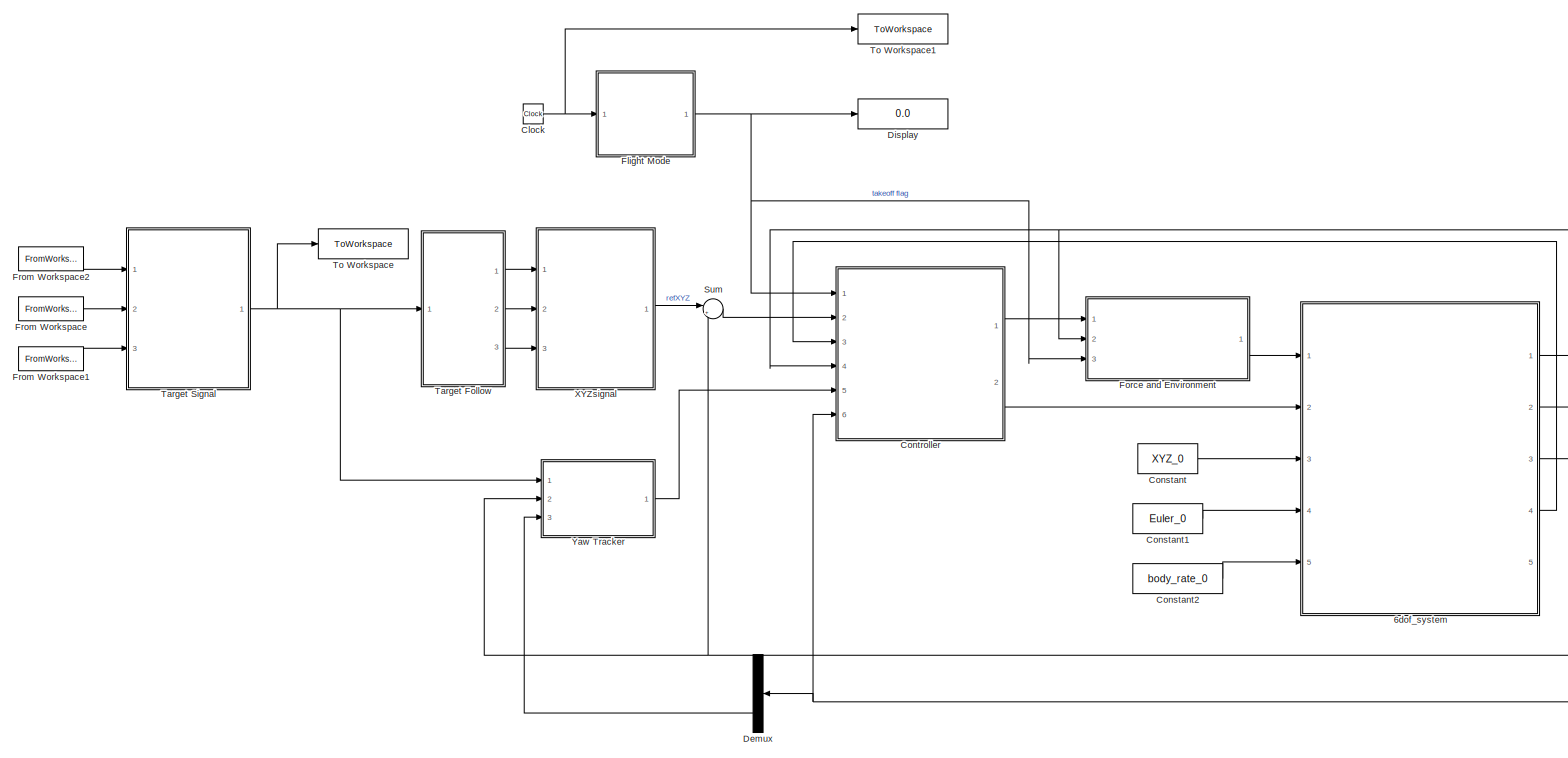
[diagram: root canvas - part 1/1, most of the canvas]
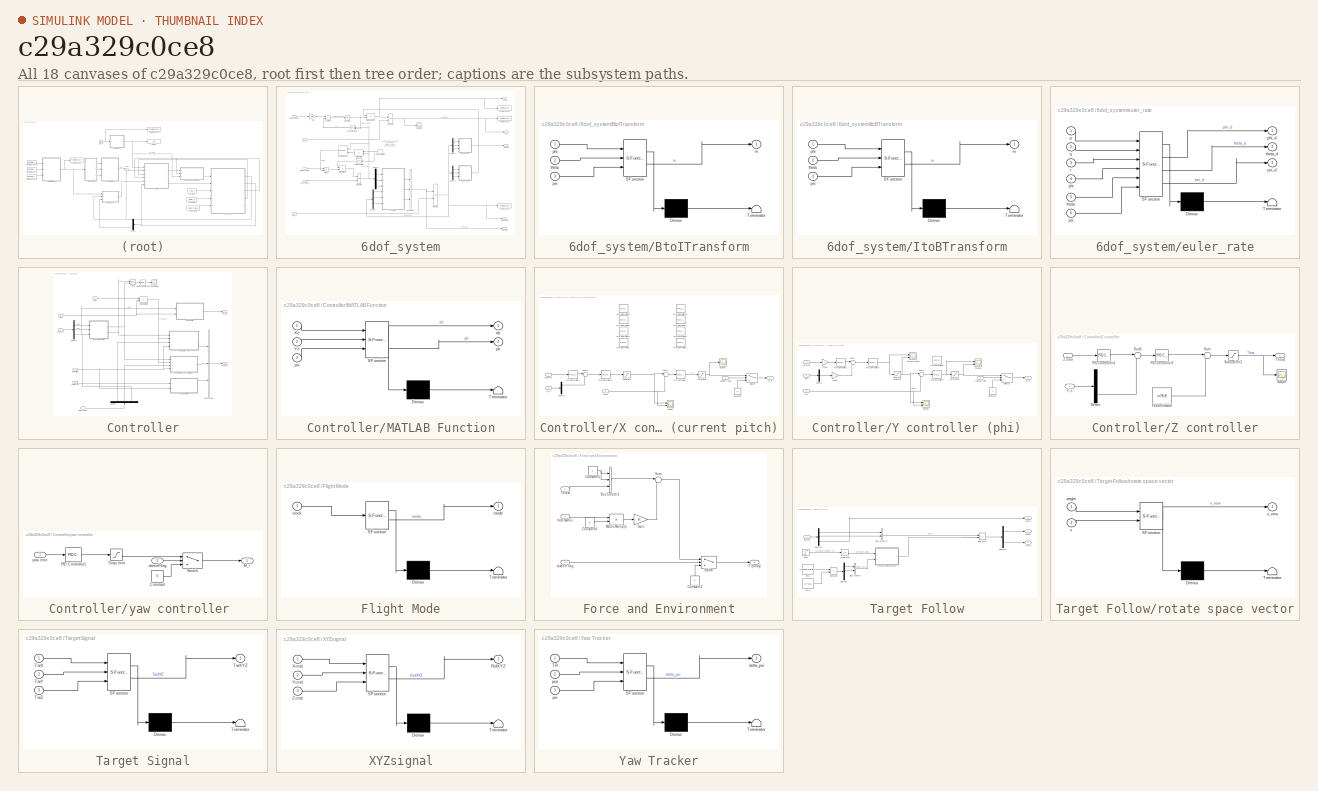
[diagram: thumbnail index - all 18 canvases of the model, root first then tree order]
MODEL slx_c29a329c0ce8
KIND model
CONFIG AbsTol = auto
CONFIG EnableMultiTasking = off
CONFIG FixedStep = auto
CONFIG MaxStep = auto
CONFIG MinStep = auto
CONFIG RelTol = 1e-3
CONFIG SampleTimeConstraint = Unconstrained
CONFIG Solver = VariableStepAuto
CONFIG SolverName = VariableStepAuto
CONFIG StartTime = 0.0
CONFIG StopTime = Tfinal
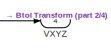
[diagram: 6dof_system - part 1/4, top right region]
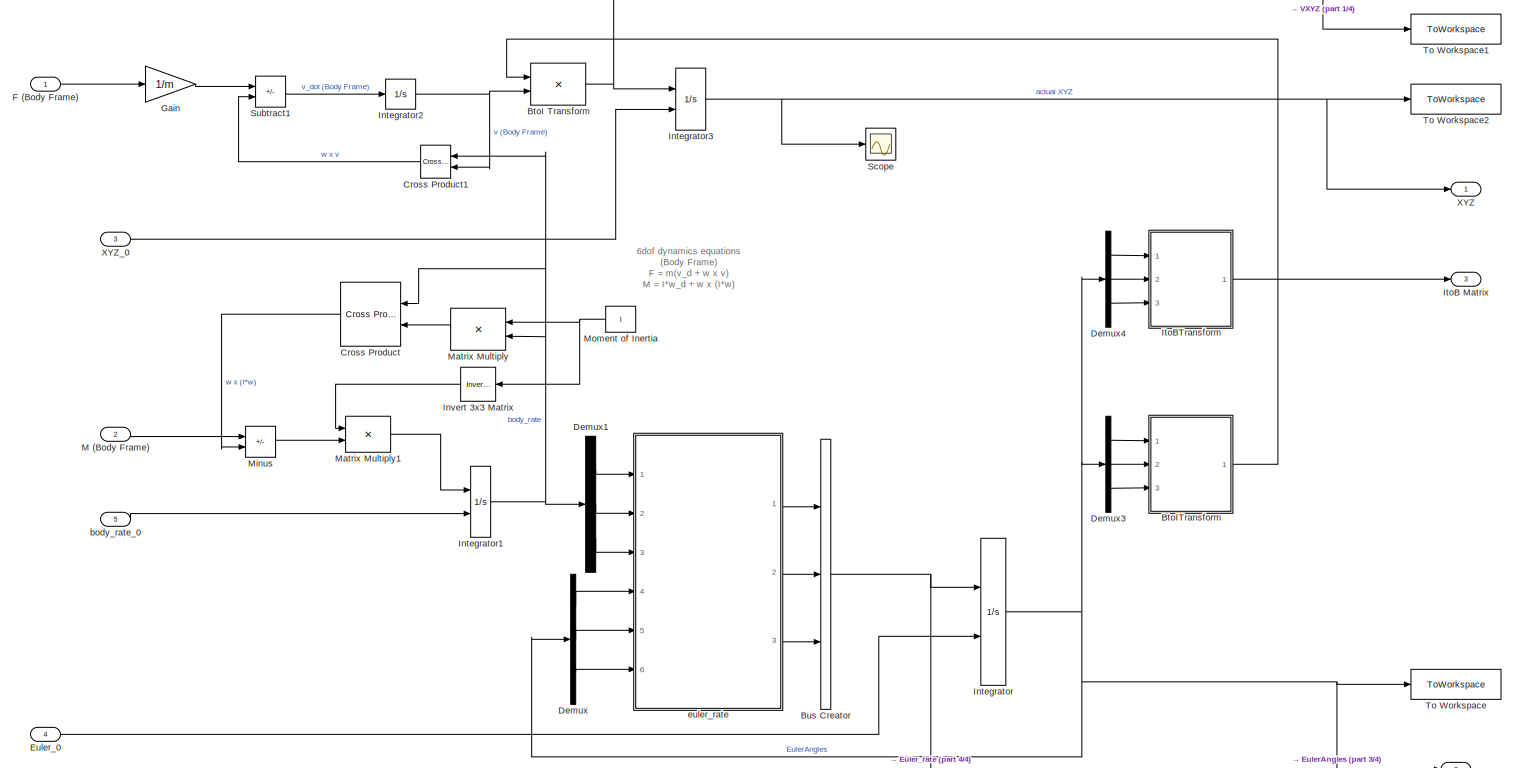
[diagram: 6dof_system - part 2/4, most of the canvas]
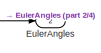
[diagram: 6dof_system - part 3/4, bottom right region]
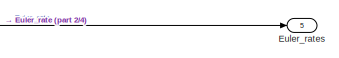
[diagram: 6dof_system - part 4/4, bottom right region]
BLOCK [SubSystem] 6dof_system
  Ports = [5, 5]
  RequestExecContextInheritance = off
BLOCK [Product] 6dof_system/BtoI Transform
  Multiplication = Matrix(*)
  Ports = [2, 1]
BLOCK [SubSystem] 6dof_system/BtoITransform
  ErrorFcn = Stateflow.Translate.translate
  PermitHierarchicalResolution = ExplicitOnly
  Ports = [3, 1]
  RequestExecContextInheritance = off
  SFBlockType = MATLAB Function
  TreatAsAtomicUnit = on
BLOCK [Demux] 6dof_system/BtoITransform/ Demux 
  Outputs = 1
  Ports = [1, 1]
BLOCK [S-Function] 6dof_system/BtoITransform/ SFunction 
  EnableBusSupport = on
  FunctionName = sf_sfun
  PortCounts = [3 2]
  Ports = [3, 2]
  SFcnIsStateOwnerBlock = off
  SFunctionDeploymentMode = off
  Tag = Stateflow S-Function 1
BLOCK [Terminator] 6dof_system/BtoITransform/ Terminator 
BLOCK [Outport] 6dof_system/BtoITransform/m
BLOCK [Inport] 6dof_system/BtoITransform/phi
BLOCK [Inport] 6dof_system/BtoITransform/psi
  Port = 3
BLOCK [Inport] 6dof_system/BtoITransform/theta
  Port = 2
BLOCK [BusCreator] 6dof_system/Bus Creator
  DisplayOption = bar
  InheritFromInputs = on
  Inputs = 3
  Ports = [3, 1]
BLOCK [Reference] 6dof_system/Cross Product  REF=vrlib/Utilities/Cross Product
  NameLocation = top
  Ports = [2, 1]
  SourceBlock = vrlib/Utilities/Cross Product
  SourceProductBaseCode = SL
  SourceType = Cross Product
BLOCK [Reference] 6dof_system/Cross Product1  REF=vrlib/Utilities/Cross Product
  NameLocation = top
  Ports = [2, 1]
  SourceBlock = vrlib/Utilities/Cross Product
  SourceProductBaseCode = SL
  SourceType = Cross Product
BLOCK [Demux] 6dof_system/Demux
  Outputs = 3
  Ports = [1, 3]
BLOCK [Demux] 6dof_system/Demux1
  Outputs = 3
  Ports = [1, 3]
BLOCK [Demux] 6dof_system/Demux3
  Outputs = 3
  Ports = [1, 3]
BLOCK [Demux] 6dof_system/Demux4
  Outputs = 3
  Ports = [1, 3]
BLOCK [Outport] 6dof_system/EulerAngles
  Port = 2
BLOCK [Inport] 6dof_system/Euler_0
  Port = 4
BLOCK [Outport] 6dof_system/Euler_rates
  Port = 5
BLOCK [Inport] 6dof_system/F (Body Frame)
BLOCK [Gain] 6dof_system/Gain
  Gain = 1/m
BLOCK [Integrator] 6dof_system/Integrator
  ContinuousStateAttributes = 'EulerAngle'
  InitialConditionSource = external
  Ports = [2, 1]
BLOCK [Integrator] 6dof_system/Integrator1
  ContinuousStateAttributes = 'EulerAngle'
  InitialConditionSource = external
  Ports = [2, 1]
BLOCK [Integrator] 6dof_system/Integrator2
  Ports = [1, 1]
BLOCK [Integrator] 6dof_system/Integrator3
  InitialConditionSource = external
  Ports = [2, 1]
BLOCK [Reference] 6dof_system/Invert 3x3 Matrix  REF=aerolibutil/Invert 
3x3 Matrix
  NameLocation = top
  Ports = [1, 1]
  SourceBlock = aerolibutil/Invert \n3x3 Matrix
  SourceProductBaseCode = AE
  SourceType = Invert 3x3 Matrix
BLOCK [Outport] 6dof_system/ItoB Matrix
  Port = 3
BLOCK [SubSystem] 6dof_system/ItoBTransform
  ErrorFcn = Stateflow.Translate.translate
  PermitHierarchicalResolution = ExplicitOnly
  Ports = [3, 1]
  RequestExecContextInheritance = off
  SFBlockType = MATLAB Function
  TreatAsAtomicUnit = on
BLOCK [Demux] 6dof_system/ItoBTransform/ Demux 
  Outputs = 1
  Ports = [1, 1]
BLOCK [S-Function] 6dof_system/ItoBTransform/ SFunction 
  EnableBusSupport = on
  FunctionName = sf_sfun
  PortCounts = [3 2]
  Ports = [3, 2]
  SFcnIsStateOwnerBlock = off
  SFunctionDeploymentMode = off
  Tag = Stateflow S-Function 5
BLOCK [Terminator] 6dof_system/ItoBTransform/ Terminator 
BLOCK [Outport] 6dof_system/ItoBTransform/m
BLOCK [Inport] 6dof_system/ItoBTransform/phi
BLOCK [Inport] 6dof_system/ItoBTransform/psi
  Port = 3
BLOCK [Inport] 6dof_system/ItoBTransform/theta
  Port = 2
BLOCK [Inport] 6dof_system/M (Body Frame)
  Port = 2
BLOCK [Product] 6dof_system/Matrix Multiply
  Multiplication = Matrix(*)
  NameLocation = top
  Ports = [2, 1]
BLOCK [Product] 6dof_system/Matrix Multiply1
  Multiplication = Matrix(*)
  Ports = [2, 1]
BLOCK [Sum] 6dof_system/Minus
  IconShape = rectangular
  Inputs = +-
  Ports = [2, 1]
BLOCK [Constant] 6dof_system/Moment of Inertia
  NameLocation = top
  Value = I
BLOCK [Scope] 6dof_system/Scope
  Floating = off
  NumInputPorts = 1
  Ports = [1]
  ScopeSpecificationString = Simulink.scopes.TimeScopeBlockCfg('CurrentConfiguration', extmgr.ConfigurationSet(extmgr.Configuration('Core','General UI',true),extmgr.Configuration('Core','Source UI',true),extmgr.Configuration('Sources','WiredSimulink',true),extmgr.Configuration('Visuals','Time Domain',true,'SerializedDisplays',{struct('MinYLimReal','-2.9474','MaxYLimReal','5.97441','YLabelReal','','MinYLimMag','0.00000','MaxYL...<+1498ch>
BLOCK [Sum] 6dof_system/Subtract1
  IconShape = rectangular
  Inputs = +-
  Ports = [2, 1]
BLOCK [ToWorkspace] 6dof_system/To Workspace
  FixptAsFi = on
  MaxDataPoints = inf
  Ports = [1]
  SampleTime = ts
  VariableName = EulerAngles
BLOCK [ToWorkspace] 6dof_system/To Workspace1
  FixptAsFi = on
  MaxDataPoints = inf
  Ports = [1]
  SampleTime = ts
  VariableName = VXYZ
BLOCK [ToWorkspace] 6dof_system/To Workspace2
  FixptAsFi = on
  MaxDataPoints = inf
  Ports = [1]
  SampleTime = ts
  VariableName = XYZ
BLOCK [Outport] 6dof_system/VXYZ
  Port = 4
BLOCK [Outport] 6dof_system/XYZ
BLOCK [Inport] 6dof_system/XYZ_0
  Port = 3
BLOCK [Inport] 6dof_system/body_rate_0
  Port = 5
BLOCK [SubSystem] 6dof_system/euler_rate
  ErrorFcn = Stateflow.Translate.translate
  PermitHierarchicalResolution = ExplicitOnly
  Ports = [6, 3]
  RequestExecContextInheritance = off
  SFBlockType = MATLAB Function
  TreatAsAtomicUnit = on
BLOCK [Demux] 6dof_system/euler_rate/ Demux 
  Outputs = 1
  Ports = [1, 1]
BLOCK [S-Function] 6dof_system/euler_rate/ SFunction 
  EnableBusSupport = on
  FunctionName = sf_sfun
  PortCounts = [6 4]
  Ports = [6, 4]
  SFcnIsStateOwnerBlock = off
  SFunctionDeploymentMode = off
  Tag = Stateflow S-Function 2
BLOCK [Terminator] 6dof_system/euler_rate/ Terminator 
BLOCK [Inport] 6dof_system/euler_rate/p
BLOCK [Inport] 6dof_system/euler_rate/phi
  Port = 4
BLOCK [Outport] 6dof_system/euler_rate/phi_d
BLOCK [Inport] 6dof_system/euler_rate/psi
  Port = 6
BLOCK [Outport] 6dof_system/euler_rate/psi_d
  Port = 3
BLOCK [Inport] 6dof_system/euler_rate/q
  Port = 2
BLOCK [Inport] 6dof_system/euler_rate/r
  Port = 3
BLOCK [Inport] 6dof_system/euler_rate/theta
  Port = 5
BLOCK [Outport] 6dof_system/euler_rate/theta_d
  Port = 2
BLOCK [Clock] Clock
BLOCK [Constant] Constant
  SampleTime = 0.01
  Value = XYZ_0
BLOCK [Constant] Constant1
  SampleTime = 0.01
  Value = Euler_0
BLOCK [Constant] Constant2
  SampleTime = 0.01
  Value = body_rate_0
BLOCK [SubSystem] Controller
  Ports = [6, 2]
  RequestExecContextInheritance = off
BLOCK [Trigonometry] Controller/Atan2
  Operator = atan2
  Ports = [2, 1]
BLOCK [BusCreator] Controller/Bus Creator
  DisplayOption = bar
  InheritFromInputs = on
  Inputs = 3
  Ports = [3, 1]
BLOCK [Demux] Controller/Demux1
  NameLocation = right
  Outputs = 3
  Ports = [1, 3]
BLOCK [Demux] Controller/Demux2
  Outputs = 3
  Ports = [1, 3]
BLOCK [Inport] Controller/EulerAngles
  Port = 6
BLOCK [Inport] Controller/ItoB
  Port = 4
BLOCK [Outport] Controller/M (body)
  Port = 2
BLOCK [SubSystem] Controller/MATLAB Function
  ErrorFcn = Stateflow.Translate.translate
  PermitHierarchicalResolution = ExplicitOnly
  Ports = [3, 2]
  RequestExecContextInheritance = off
  SFBlockType = MATLAB Function
  TreatAsAtomicUnit = on
BLOCK [Demux] Controller/MATLAB Function/ Demux 
  Outputs = 1
  Ports = [1, 1]
BLOCK [S-Function] Controller/MATLAB Function/ SFunction 
  EnableBusSupport = on
  FunctionName = sf_sfun
  PortCounts = [3 3]
  Ports = [3, 3]
  SFcnIsStateOwnerBlock = off
  SFunctionDeploymentMode = off
  Tag = Stateflow S-Function 3
BLOCK [Terminator] Controller/MATLAB Function/ Terminator 
BLOCK [Inport] Controller/MATLAB Function/Xe
BLOCK [Inport] Controller/MATLAB Function/Ye
  Port = 2
BLOCK [Inport] Controller/MATLAB Function/psi
  Port = 3
BLOCK [Outport] Controller/MATLAB Function/xb
BLOCK [Outport] Controller/MATLAB Function/yb
  Port = 2
BLOCK [Product] Controller/Matrix Multiply
  Multiplication = Matrix(*)
  Ports = [2, 1]
BLOCK [Reference] Controller/Radians to Degrees  REF=simulink_extras/Transformations/Radians
to Degrees
  Ports = [1, 1]
  SourceBlock = simulink_extras/Transformations/Radians\nto Degrees
  SourceProductBaseCode = SL
  SourceType = RadiansToDegrees
BLOCK [Outport] Controller/Thrust
BLOCK [Inport] Controller/VXYZ
  Port = 3
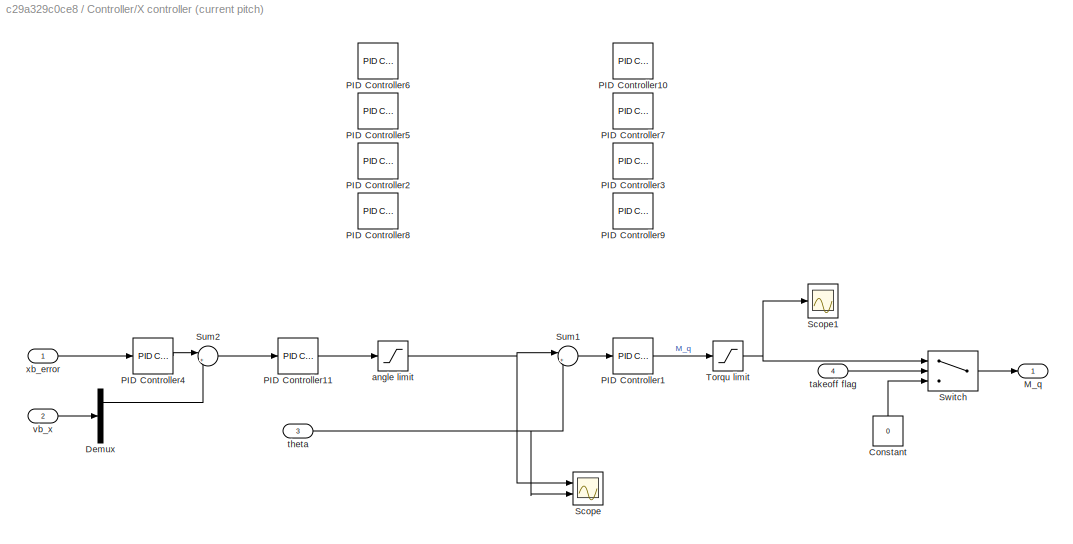
BLOCK [SubSystem] Controller/X controller (current pitch)
  Ports = [4, 1]
  RequestExecContextInheritance = off
BLOCK [Constant] Controller/X controller (current pitch)/Constant
  NameLocation = right
  Value = 0
BLOCK [Demux] Controller/X controller (current pitch)/Demux
  Outputs = 3
  Ports = [1, 3]
BLOCK [Outport] Controller/X controller (current pitch)/M_q
BLOCK [Reference] Controller/X controller (current pitch)/PID Controller1  REF=simulink/Continuous/PID Controller
  Ports = [1, 1]
  SourceBlock = simulink/Continuous/PID Controller
  SourceProductBaseCode = SL
  SourceType = PID 1dof
BLOCK [Reference] Controller/X controller (current pitch)/PID Controller10  REF=simulink/Continuous/PID Controller
  Commented = on
  Ports = [1, 1]
  SourceBlock = simulink/Continuous/PID Controller
  SourceProductBaseCode = SL
  SourceType = PID 1dof
BLOCK [Reference] Controller/X controller (current pitch)/PID Controller11  REF=simulink/Continuous/PID Controller
  Ports = [1, 1]
  SourceBlock = simulink/Continuous/PID Controller
  SourceProductBaseCode = SL
  SourceType = PID 1dof
BLOCK [Reference] Controller/X controller (current pitch)/PID Controller2  REF=simulink/Continuous/PID Controller
  Commented = on
  Ports = [1, 1]
  SourceBlock = simulink/Continuous/PID Controller
  SourceProductBaseCode = SL
  SourceType = PID 1dof
BLOCK [Reference] Controller/X controller (current pitch)/PID Controller3  REF=simulink/Continuous/PID Controller
  Commented = on
  Ports = [1, 1]
  SourceBlock = simulink/Continuous/PID Controller
  SourceProductBaseCode = SL
  SourceType = PID 1dof
BLOCK [Reference] Controller/X controller (current pitch)/PID Controller4  REF=simulink/Continuous/PID Controller
  Ports = [1, 1]
  SourceBlock = simulink/Continuous/PID Controller
  SourceProductBaseCode = SL
  SourceType = PID 1dof
BLOCK [Reference] Controller/X controller (current pitch)/PID Controller5  REF=simulink/Continuous/PID Controller
  Commented = on
  Ports = [1, 1]
  SourceBlock = simulink/Continuous/PID Controller
  SourceProductBaseCode = SL
  SourceType = PID 1dof
BLOCK [Reference] Controller/X controller (current pitch)/PID Controller6  REF=simulink/Continuous/PID Controller
  Commented = on
  Ports = [1, 1]
  SourceBlock = simulink/Continuous/PID Controller
  SourceProductBaseCode = SL
  SourceType = PID 1dof
BLOCK [Reference] Controller/X controller (current pitch)/PID Controller7  REF=simulink/Continuous/PID Controller
  Commented = on
  Ports = [1, 1]
  SourceBlock = simulink/Continuous/PID Controller
  SourceProductBaseCode = SL
  SourceType = PID 1dof
BLOCK [Reference] Controller/X controller (current pitch)/PID Controller8  REF=simulink/Continuous/PID Controller
  Commented = on
  Ports = [1, 1]
  SourceBlock = simulink/Continuous/PID Controller
  SourceProductBaseCode = SL
  SourceType = PID 1dof
BLOCK [Reference] Controller/X controller (current pitch)/PID Controller9  REF=simulink/Continuous/PID Controller
  Commented = on
  Ports = [1, 1]
  SourceBlock = simulink/Continuous/PID Controller
  SourceProductBaseCode = SL
  SourceType = PID 1dof
BLOCK [Scope] Controller/X controller (current pitch)/Scope
  Floating = off
  NumInputPorts = 2
  Ports = [2]
  ScopeSpecificationString = Simulink.scopes.TimeScopeBlockCfg('CurrentConfiguration', extmgr.ConfigurationSet(extmgr.Configuration('Core','General UI',true),extmgr.Configuration('Core','Source UI',true),extmgr.Configuration('Sources','WiredSimulink',true,'DataLoggingVariableName','ScopeData1'),extmgr.Configuration('Visuals','Time Domain',true,'SerializedDisplays',{struct('MinYLimReal','-0.10423','MaxYLimReal','0.09514','YLab...<+1429ch>
BLOCK [Scope] Controller/X controller (current pitch)/Scope1
  Floating = off
  NumInputPorts = 1
  Ports = [1]
  ScopeSpecificationString = Simulink.scopes.TimeScopeBlockCfg('CurrentConfiguration', extmgr.ConfigurationSet(extmgr.Configuration('Core','General UI',true),extmgr.Configuration('Core','Source UI',true),extmgr.Configuration('Sources','WiredSimulink',true,'DataLoggingVariableName','ScopeData2'),extmgr.Configuration('Visuals','Time Domain',true,'SerializedDisplays',{struct('MinYLimReal','-1.875','MaxYLimReal','1.875','YLabelRe...<+1430ch>
BLOCK [Sum] Controller/X controller (current pitch)/Sum1
  Inputs = |+-
  Ports = [2, 1]
BLOCK [Sum] Controller/X controller (current pitch)/Sum2
  Inputs = |+-
  Ports = [2, 1]
BLOCK [Switch] Controller/X controller (current pitch)/Switch
  Criteria = u2 > Threshold
  InputSameDT = off
  SaturateOnIntegerOverflow = off
BLOCK [Saturate] Controller/X controller (current pitch)/Torqu limit
  LowerLimit = -2
  UpperLimit = 2
BLOCK [Saturate] Controller/X controller (current pitch)/angle limit
  LowerLimit = -1.05
  UpperLimit = 1.05
BLOCK [Inport] Controller/X controller (current pitch)/takeoff flag
  Port = 4
BLOCK [Inport] Controller/X controller (current pitch)/theta
  Port = 3
BLOCK [Inport] Controller/X controller (current pitch)/vb_x
  Port = 2
BLOCK [Inport] Controller/X controller (current pitch)/xb_error 
BLOCK [Inport] Controller/XYZ error
  Port = 2
BLOCK [SubSystem] Controller/Y controller (phi)
  Ports = [4, 1]
  RequestExecContextInheritance = off
BLOCK [Saturate] Controller/Y controller (phi)/ angle limit
  LowerLimit = -1.05
  UpperLimit = 1.05
BLOCK [Constant] Controller/Y controller (phi)/Constant1
  NameLocation = right
  Value = 0
BLOCK [Demux] Controller/Y controller (phi)/Demux
  Outputs = 3
  Ports = [1, 3]
BLOCK [Gain] Controller/Y controller (phi)/Gain1
  Gain = -1
BLOCK [Gain] Controller/Y controller (phi)/Gain2
  Gain = -1
BLOCK [Outport] Controller/Y controller (phi)/M_p
BLOCK [Reference] Controller/Y controller (phi)/PID Controller1  REF=simulink/Continuous/PID Controller
  Ports = [1, 1]
  SourceBlock = simulink/Continuous/PID Controller
  SourceProductBaseCode = SL
  SourceType = PID 1dof
BLOCK [Reference] Controller/Y controller (phi)/PID Controller3  REF=simulink/Continuous/PID Controller
  Ports = [1, 1]
  SourceBlock = simulink/Continuous/PID Controller
  SourceProductBaseCode = SL
  SourceType = PID 1dof
BLOCK [Reference] Controller/Y controller (phi)/PID Controller4  REF=simulink/Continuous/PID Controller
  Ports = [1, 1]
  SourceBlock = simulink/Continuous/PID Controller
  SourceProductBaseCode = SL
  SourceType = PID 1dof
BLOCK [Reference] Controller/Y controller (phi)/PID Controller8  REF=simulink/Continuous/PID Controller
  Commented = on
  Ports = [1, 1]
  SourceBlock = simulink/Continuous/PID Controller
  SourceProductBaseCode = SL
  SourceType = PID 1dof
BLOCK [Scope] Controller/Y controller (phi)/Scope1
  Floating = off
  NumInputPorts = 2
  Ports = [2]
  ScopeSpecificationString = Simulink.scopes.TimeScopeBlockCfg('CurrentConfiguration', extmgr.ConfigurationSet(extmgr.Configuration('Core','General UI',true),extmgr.Configuration('Core','Source UI',true),extmgr.Configuration('Sources','WiredSimulink',true,'DataLoggingVariableName','ScopeData1'),extmgr.Configuration('Visuals','Time Domain',true,'SerializedDisplays',{struct('MinYLimReal','-0.11184','MaxYLimReal','0.10606','YLab...<+1423ch>
BLOCK [Sum] Controller/Y controller (phi)/Sum1
  Inputs = |+-
  Ports = [2, 1]
BLOCK [Sum] Controller/Y controller (phi)/Sum3
  Inputs = |+-
  Ports = [2, 1]
BLOCK [Switch] Controller/Y controller (phi)/Switch1
  Criteria = u2 > Threshold
  InputSameDT = off
  SaturateOnIntegerOverflow = off
BLOCK [Saturate] Controller/Y controller (phi)/Torqu limit1
  LowerLimit = -2
  UpperLimit = 2
BLOCK [Scope] Controller/Y controller (phi)/Torque
  Floating = off
  NumInputPorts = 2
  Ports = [2]
  ScopeSpecificationString = Simulink.scopes.TimeScopeBlockCfg('CurrentConfiguration', extmgr.ConfigurationSet(extmgr.Configuration('Core','General UI',true),extmgr.Configuration('Core','Source UI',true),extmgr.Configuration('Sources','WiredSimulink',true,'DataLoggingVariableName','ScopeData2'),extmgr.Configuration('Visuals','Time Domain',true,'SerializedDisplays',{struct('MinYLimReal','-0.06281','MaxYLimReal','0.02474','YLab...<+1461ch>
BLOCK [Inport] Controller/Y controller (phi)/phi
  Port = 3
BLOCK [Scope] Controller/Y controller (phi)/phi saturation
  Floating = off
  NumInputPorts = 2
  Ports = [2]
  ScopeSpecificationString = Simulink.scopes.TimeScopeBlockCfg('CurrentConfiguration', extmgr.ConfigurationSet(extmgr.Configuration('Core','General UI',true),extmgr.Configuration('Core','Source UI',true),extmgr.Configuration('Sources','WiredSimulink',true,'DataLoggingVariableName','ScopeData2'),extmgr.Configuration('Visuals','Time Domain',true,'SerializedDisplays',{struct('MinYLimReal','-0.09557','MaxYLimReal','0.09264','YLab...<+1438ch>
BLOCK [Inport] Controller/Y controller (phi)/takeoff flag
  Port = 4
BLOCK [Inport] Controller/Y controller (phi)/vb_y
  Port = 2
BLOCK [Inport] Controller/Y controller (phi)/yb_error 
BLOCK [SubSystem] Controller/Z controller
  Ports = [2, 1]
  RequestExecContextInheritance = off
BLOCK [Demux] Controller/Z controller/Demux
  Outputs = 3
  Ports = [1, 3]
BLOCK [Constant] Controller/Z controller/FeedForward
  Value = m*9.8
BLOCK [Reference] Controller/Z controller/PID Controller3  REF=simulink/Continuous/PID Controller
  Ports = [1, 1]
  SourceBlock = simulink/Continuous/PID Controller
  SourceProductBaseCode = SL
  SourceType = PID 1dof
BLOCK [Reference] Controller/Z controller/PID Controller4  REF=simulink/Continuous/PID Controller
  Ports = [1, 1]
  SourceBlock = simulink/Continuous/PID Controller
  SourceProductBaseCode = SL
  SourceType = PID 1dof
BLOCK [Saturate] Controller/Z controller/Saturation2
  LowerLimit = -30
  UpperLimit = 30
BLOCK [Scope] Controller/Z controller/Scope
  Floating = off
  NumInputPorts = 1
  Ports = [1]
  ScopeSpecificationString = Simulink.scopes.TimeScopeBlockCfg('CurrentConfiguration', extmgr.ConfigurationSet(extmgr.Configuration('Core','General UI',true),extmgr.Configuration('Core','Source UI',true),extmgr.Configuration('Sources','WiredSimulink',true,'DataLoggingVariableName','ScopeData3'),extmgr.Configuration('Visuals','Time Domain',true,'SerializedDisplays',{struct('MinYLimReal','-5.22862','MaxYLimReal','5.39625','YLab...<+1474ch>
BLOCK [Sum] Controller/Z controller/Sum
  Inputs = |++
  Ports = [2, 1]
BLOCK [Sum] Controller/Z controller/Sum3
  Inputs = |+-
  Ports = [2, 1]
BLOCK [Outport] Controller/Z controller/Thrust
BLOCK [Inport] Controller/Z controller/V_Z
  Port = 2
BLOCK [Inport] Controller/Z controller/Z error
BLOCK [Inport] Controller/takeoff flag
BLOCK [Scope] Controller/xb yb angle
  Floating = off
  NumInputPorts = 1
  Ports = [1]
  ScopeSpecificationString = Simulink.scopes.TimeScopeBlockCfg('CurrentConfiguration', extmgr.ConfigurationSet(extmgr.Configuration('Core','General UI',true),extmgr.Configuration('Core','Source UI',true),extmgr.Configuration('Sources','WiredSimulink',true,'DataLoggingVariableName','ScopeData1'),extmgr.Configuration('Visuals','Time Domain',true,'SerializedDisplays',{struct('MinYLimReal','-5.4498','MaxYLimReal','49.04818','YLab...<+1453ch>
BLOCK [SubSystem] Controller/yaw controller 
  Ports = [2, 1]
  RequestExecContextInheritance = off
BLOCK [Constant] Controller/yaw controller /Constant
  Value = 0
BLOCK [Outport] Controller/yaw controller /M_r
BLOCK [Reference] Controller/yaw controller /PID Controller1  REF=simulink/Continuous/PID Controller
  Ports = [1, 1]
  SourceBlock = simulink/Continuous/PID Controller
  SourceProductBaseCode = SL
  SourceType = PID 1dof
BLOCK [Switch] Controller/yaw controller /Switch
  Criteria = u2 > Threshold
  InputSameDT = off
  SaturateOnIntegerOverflow = off
BLOCK [Saturate] Controller/yaw controller /Torqu limit
  LowerLimit = -1.5
  UpperLimit = 1.5
BLOCK [Inport] Controller/yaw controller /takeoff flag
  Port = 2
BLOCK [Inport] Controller/yaw controller /yaw error
BLOCK [Inport] Controller/yaw error
  Port = 5
BLOCK [Demux] Demux
  NameLocation = top
  Outputs = 3
  Ports = [1, 3]
BLOCK [Display] Display
  Decimation = 1
  Ports = [1]
BLOCK [SubSystem] Flight Mode
  ErrorFcn = Stateflow.Translate.translate
  PermitHierarchicalResolution = ExplicitOnly
  Ports = [1, 1]
  RequestExecContextInheritance = off
  SFBlockType = MATLAB Function
  TreatAsAtomicUnit = on
BLOCK [Demux] Flight Mode/ Demux 
  Outputs = 1
  Ports = [1, 1]
BLOCK [S-Function] Flight Mode/ SFunction 
  EnableBusSupport = on
  FunctionName = sf_sfun
  PortCounts = [1 2]
  Ports = [1, 2]
  SFcnIsStateOwnerBlock = off
  SFunctionDeploymentMode = off
  Tag = Stateflow S-Function 8
BLOCK [Terminator] Flight Mode/ Terminator 
BLOCK [Inport] Flight Mode/clock
BLOCK [Outport] Flight Mode/mode
BLOCK [SubSystem] Force and Environment
  Ports = [3, 1]
  RequestExecContextInheritance = off
BLOCK [BusCreator] Force and Environment/Bus Creator1
  DisplayOption = bar
  InheritFromInputs = on
  Inputs = 3
  Ports = [3, 1]
BLOCK [Constant] Force and Environment/Constant2
  NameLocation = right
  SampleTime = 0.01
  Value = 0
BLOCK [Constant] Force and Environment/Constant4
  SampleTime = 0.01
  Value = g
BLOCK [Constant] Force and Environment/Constant5
  SampleTime = 0.01
  Value = 0
BLOCK [Outport] Force and Environment/F (body)
BLOCK [Gain] Force and Environment/Gain
  Gain = m
BLOCK [Inport] Force and Environment/ItoB Matrix
  Port = 2
BLOCK [Product] Force and Environment/Matrix Multiply
  Multiplication = Matrix(*)
  Ports = [2, 1]
BLOCK [Sum] Force and Environment/Sum
  Inputs = |++
  Ports = [2, 1]
BLOCK [Switch] Force and Environment/Switch
  Criteria = u2 > Threshold
  InputSameDT = off
  SaturateOnIntegerOverflow = off
BLOCK [Inport] Force and Environment/Thrust
BLOCK [Inport] Force and Environment/takeoff flag
  Port = 3
BLOCK [FromWorkspace] From Workspace
  SampleTime = ts
  VariableName = Ycmd
BLOCK [FromWorkspace] From Workspace1
  SampleTime = ts
  VariableName = Zcmd
BLOCK [FromWorkspace] From Workspace2
  SampleTime = ts
  VariableName = Xcmd
BLOCK [Sum] Sum
  Inputs = |+-
  Ports = [2, 1]
BLOCK [SubSystem] Target Follow
  Ports = [1, 3]
  RequestExecContextInheritance = off
BLOCK [BusCreator] Target Follow/Bus Creator
  DisplayOption = bar
  InheritFromInputs = on
  Inputs = 2
  Ports = [2, 1]
BLOCK [BusCreator] Target Follow/Bus Creator1
  DisplayOption = bar
  InheritFromInputs = on
  Inputs = 2
  Ports = [2, 1]
BLOCK [Demux] Target Follow/Demux1
  Outputs = 3
  Ports = [1, 3]
BLOCK [Demux] Target Follow/Demux2
  Outputs = 2
  Ports = [1, 2]
BLOCK [Demux] Target Follow/Demux3
  Outputs = 3
  Ports = [1, 3]
BLOCK [Integrator] Target Follow/Integrator
  Ports = [1, 1]
BLOCK [Step] Target Follow/Step
  After = surround_rate
  SampleTime = 0
  Time = 2
BLOCK [Sum] Target Follow/Subtract
  IconShape = rectangular
  Inputs = +-
  Ports = [2, 1]
BLOCK [Sum] Target Follow/Subtract1
  IconShape = rectangular
  Inputs = +-
  Ports = [2, 1]
BLOCK [Constant] Target Follow/TR_0
  Value = [Xcmd.Data(:,:,1);Ycmd.Data(:,:,1);0]
BLOCK [Inport] Target Follow/TarXYZ
BLOCK [Constant] Target Follow/XYZ_0
  Value = XYZ_0
BLOCK [Outport] Target Follow/Xcmd
BLOCK [Outport] Target Follow/Ycmd
  Port = 2
BLOCK [Outport] Target Follow/Zcmd
  Port = 3
BLOCK [SubSystem] Target Follow/rotate space vector
  ErrorFcn = Stateflow.Translate.translate
  PermitHierarchicalResolution = ExplicitOnly
  Ports = [2, 1]
  RequestExecContextInheritance = off
  SFBlockType = MATLAB Function
  TreatAsAtomicUnit = on
BLOCK [Demux] Target Follow/rotate space vector/ Demux 
  Outputs = 1
  Ports = [1, 1]
BLOCK [S-Function] Target Follow/rotate space vector/ SFunction 
  EnableBusSupport = on
  FunctionName = sf_sfun
  PortCounts = [2 2]
  Ports = [2, 2]
  SFcnIsStateOwnerBlock = off
  SFunctionDeploymentMode = off
  Tag = Stateflow S-Function 9
BLOCK [Terminator] Target Follow/rotate space vector/ Terminator 
BLOCK [Inport] Target Follow/rotate space vector/angle
BLOCK [Inport] Target Follow/rotate space vector/v
  Port = 2
BLOCK [Outport] Target Follow/rotate space vector/v_new
BLOCK [SubSystem] Target Signal
  ErrorFcn = Stateflow.Translate.translate
  PermitHierarchicalResolution = ExplicitOnly
  Ports = [3, 1]
  RequestExecContextInheritance = off
  SFBlockType = MATLAB Function
  TreatAsAtomicUnit = on
BLOCK [Demux] Target Signal/ Demux 
  Outputs = 1
  Ports = [1, 1]
BLOCK [S-Function] Target Signal/ SFunction 
  EnableBusSupport = on
  FunctionName = sf_sfun
  PortCounts = [3 2]
  Ports = [3, 2]
  SFcnIsStateOwnerBlock = off
  SFunctionDeploymentMode = off
  Tag = Stateflow S-Function 10
BLOCK [Terminator] Target Signal/ Terminator 
BLOCK [Inport] Target Signal/TarX
BLOCK [Outport] Target Signal/TarXYZ
  VectorParamsAs1DForOutWhenUnconnected = off
BLOCK [Inport] Target Signal/TarY
  Port = 2
BLOCK [Inport] Target Signal/TarZ
  Port = 3
BLOCK [ToWorkspace] To Workspace
  FixptAsFi = on
  MaxDataPoints = inf
  Ports = [1]
  SampleTime = ts
  VariableName = Tar
BLOCK [ToWorkspace] To Workspace1
  FixptAsFi = on
  MaxDataPoints = inf
  Ports = [1]
  SampleTime = ts
  VariableName = time
BLOCK [SubSystem] XYZsignal
  ErrorFcn = Stateflow.Translate.translate
  PermitHierarchicalResolution = ExplicitOnly
  Ports = [3, 1]
  RequestExecContextInheritance = off
  SFBlockType = MATLAB Function
  TreatAsAtomicUnit = on
BLOCK [Demux] XYZsignal/ Demux 
  Outputs = 1
  Ports = [1, 1]
BLOCK [S-Function] XYZsignal/ SFunction 
  EnableBusSupport = on
  FunctionName = sf_sfun
  PortCounts = [3 2]
  Ports = [3, 2]
  SFcnIsStateOwnerBlock = off
  SFunctionDeploymentMode = off
  Tag = Stateflow S-Function 4
BLOCK [Terminator] XYZsignal/ Terminator 
BLOCK [Outport] XYZsignal/RefXYZ
  VectorParamsAs1DForOutWhenUnconnected = off
BLOCK [Inport] XYZsignal/Xcmd
BLOCK [Inport] XYZsignal/Ycmd
  Port = 2
BLOCK [Inport] XYZsignal/Zcmd
  Port = 3
BLOCK [SubSystem] Yaw Tracker
  ErrorFcn = Stateflow.Translate.translate
  PermitHierarchicalResolution = ExplicitOnly
  Ports = [3, 1]
  RequestExecContextInheritance = off
  SFBlockType = MATLAB Function
  TreatAsAtomicUnit = on
BLOCK [Demux] Yaw Tracker/ Demux 
  Outputs = 1
  Ports = [1, 1]
BLOCK [S-Function] Yaw Tracker/ SFunction 
  EnableBusSupport = on
  FunctionName = sf_sfun
  PortCounts = [3 2]
  Ports = [3, 2]
  SFcnIsStateOwnerBlock = off
  SFunctionDeploymentMode = off
  Tag = Stateflow S-Function 7
BLOCK [Terminator] Yaw Tracker/ Terminator 
BLOCK [Inport] Yaw Tracker/TR
BLOCK [Outport] Yaw Tracker/delta_psi
BLOCK [Inport] Yaw Tracker/pos
  Port = 2
BLOCK [Inport] Yaw Tracker/psi
  Port = 3
ANNOTATION 6dof_system: 6dof dynamics equations (Body Frame) F = m(v_d + w x v) M = I*w_d + w x (I*w)
NET 6dof_system/BtoI Transform:1 -> 6dof_system/Integrator3:1, 6dof_system/To Workspace1:1, 6dof_system/VXYZ:1
LINE 6dof_system/BtoITransform:1 -> 6dof_system/BtoI Transform:1
NET 6dof_system/Bus Creator:1 -> 6dof_system/Euler_rates:1, 6dof_system/Integrator:1
LINE 6dof_system/Cross Product1:1 -> 6dof_system/Subtract1:2
LINE 6dof_system/Cross Product:1 -> 6dof_system/Minus:2
LINE 6dof_system/Demux1:1 -> 6dof_system/euler_rate:1
LINE 6dof_system/Demux1:2 -> 6dof_system/euler_rate:2
LINE 6dof_system/Demux1:3 -> 6dof_system/euler_rate:3
LINE 6dof_system/Demux3:1 -> 6dof_system/BtoITransform:1
LINE 6dof_system/Demux3:2 -> 6dof_system/BtoITransform:2
LINE 6dof_system/Demux3:3 -> 6dof_system/BtoITransform:3
LINE 6dof_system/Demux4:1 -> 6dof_system/ItoBTransform:1
LINE 6dof_system/Demux4:2 -> 6dof_system/ItoBTransform:2
LINE 6dof_system/Demux4:3 -> 6dof_system/ItoBTransform:3
LINE 6dof_system/Demux:1 -> 6dof_system/euler_rate:4
LINE 6dof_system/Demux:2 -> 6dof_system/euler_rate:5
LINE 6dof_system/Demux:3 -> 6dof_system/euler_rate:6
LINE 6dof_system/Euler_0:1 -> 6dof_system/Integrator:2
LINE 6dof_system/F (Body Frame):1 -> 6dof_system/Gain:1
LINE 6dof_system/Gain:1 -> 6dof_system/Subtract1:1
NET 6dof_system/Integrator1:1 -> 6dof_system/Cross Product1:1, 6dof_system/Cross Product:1, 6dof_system/Demux1:1, 6dof_system/Matrix Multiply:2
NET 6dof_system/Integrator2:1 -> 6dof_system/BtoI Transform:2, 6dof_system/Cross Product1:2
NET 6dof_system/Integrator3:1 -> 6dof_system/Scope:1, 6dof_system/To Workspace2:1, 6dof_system/XYZ:1
NET 6dof_system/Integrator:1 -> 6dof_system/Demux3:1, 6dof_system/Demux4:1, 6dof_system/Demux:1, 6dof_system/EulerAngles:1, 6dof_system/To Workspace:1
LINE 6dof_system/Invert 3x3 Matrix:1 -> 6dof_system/Matrix Multiply1:1
LINE 6dof_system/ItoBTransform:1 -> 6dof_system/ItoB Matrix:1
LINE 6dof_system/M (Body Frame):1 -> 6dof_system/Minus:1
LINE 6dof_system/Matrix Multiply1:1 -> 6dof_system/Integrator1:1
LINE 6dof_system/Matrix Multiply:1 -> 6dof_system/Cross Product:2
LINE 6dof_system/Minus:1 -> 6dof_system/Matrix Multiply1:2
NET 6dof_system/Moment of Inertia:1 -> 6dof_system/Invert 3x3 Matrix:1, 6dof_system/Matrix Multiply:1
LINE 6dof_system/Subtract1:1 -> 6dof_system/Integrator2:1
LINE 6dof_system/XYZ_0:1 -> 6dof_system/Integrator3:2
LINE 6dof_system/body_rate_0:1 -> 6dof_system/Integrator1:2
LINE 6dof_system/euler_rate:1 -> 6dof_system/Bus Creator:1
LINE 6dof_system/euler_rate:2 -> 6dof_system/Bus Creator:2
LINE 6dof_system/euler_rate:3 -> 6dof_system/Bus Creator:3
NET 6dof_system:1 -> Sum:2, Yaw Tracker:2
NET 6dof_system:2 -> Controller:6, Demux:1
NET 6dof_system:3 -> Controller:4, Force and Environment:2
LINE 6dof_system:4 -> Controller:3
NET Clock:1 -> Flight Mode:1, To Workspace1:1
LINE Constant1:1 -> 6dof_system:4
LINE Constant2:1 -> 6dof_system:5
LINE Constant:1 -> 6dof_system:3
LINE Controller/Atan2:1 -> Controller/Radians to Degrees:1
LINE Controller/Bus Creator:1 -> Controller/M (body):1
LINE Controller/Demux1:1 -> Controller/Y controller (phi):3
LINE Controller/Demux1:2 -> Controller/X controller (current pitch):3
LINE Controller/Demux1:3 -> Controller/MATLAB Function:3
LINE Controller/Demux2:1 -> Controller/MATLAB Function:1
LINE Controller/Demux2:2 -> Controller/MATLAB Function:2
LINE Controller/Demux2:3 -> Controller/Z controller:1
LINE Controller/EulerAngles:1 -> Controller/Demux1:1
LINE Controller/ItoB:1 -> Controller/Matrix Multiply:1
NET Controller/MATLAB Function:1 -> Controller/Atan2:2, Controller/X controller (current pitch):1
NET Controller/MATLAB Function:2 -> Controller/Atan2:1, Controller/Y controller (phi):1
NET Controller/Matrix Multiply:1 -> Controller/X controller (current pitch):2, Controller/Y controller (phi):2
LINE Controller/Radians to Degrees:1 -> Controller/xb yb angle:1
NET Controller/VXYZ:1 -> Controller/Matrix Multiply:2, Controller/Z controller:2
LINE Controller/X controller (current pitch)/Constant:1 -> Controller/X controller (current pitch)/Switch:3
LINE Controller/X controller (current pitch)/Demux:1 -> Controller/X controller (current pitch)/Sum2:2
LINE Controller/X controller (current pitch)/PID Controller11:1 -> Controller/X controller (current pitch)/angle limit:1
LINE Controller/X controller (current pitch)/PID Controller1:1 -> Controller/X controller (current pitch)/Torqu limit:1
LINE Controller/X controller (current pitch)/PID Controller4:1 -> Controller/X controller (current pitch)/Sum2:1
LINE Controller/X controller (current pitch)/Sum1:1 -> Controller/X controller (current pitch)/PID Controller1:1
LINE Controller/X controller (current pitch)/Sum2:1 -> Controller/X controller (current pitch)/PID Controller11:1
LINE Controller/X controller (current pitch)/Switch:1 -> Controller/X controller (current pitch)/M_q:1
NET Controller/X controller (current pitch)/Torqu limit:1 -> Controller/X controller (current pitch)/Scope1:1, Controller/X controller (current pitch)/Switch:1
NET Controller/X controller (current pitch)/angle limit:1 -> Controller/X controller (current pitch)/Scope:1, Controller/X controller (current pitch)/Sum1:1
LINE Controller/X controller (current pitch)/takeoff flag:1 -> Controller/X controller (current pitch)/Switch:2
NET Controller/X controller (current pitch)/theta:1 -> Controller/X controller (current pitch)/Scope:2, Controller/X controller (current pitch)/Sum1:2
LINE Controller/X controller (current pitch)/vb_x:1 -> Controller/X controller (current pitch)/Demux:1
LINE Controller/X controller (current pitch)/xb_error :1 -> Controller/X controller (current pitch)/PID Controller4:1
LINE Controller/X controller (current pitch):1 -> Controller/Bus Creator:2
LINE Controller/XYZ error:1 -> Controller/Demux2:1
NET Controller/Y controller (phi)/ angle limit:1 -> Controller/Y controller (phi)/Scope1:1, Controller/Y controller (phi)/Sum3:1, Controller/Y controller (phi)/phi saturation:2
LINE Controller/Y controller (phi)/Constant1:1 -> Controller/Y controller (phi)/Switch1:3
LINE Controller/Y controller (phi)/Demux:2 -> Controller/Y controller (phi)/Gain2:1
LINE Controller/Y controller (phi)/Gain1:1 -> Controller/Y controller (phi)/PID Controller1:1
LINE Controller/Y controller (phi)/Gain2:1 -> Controller/Y controller (phi)/Sum1:2
LINE Controller/Y controller (phi)/PID Controller1:1 -> Controller/Y controller (phi)/Sum1:1
NET Controller/Y controller (phi)/PID Controller3:1 -> Controller/Y controller (phi)/ angle limit:1, Controller/Y controller (phi)/phi saturation:1
NET Controller/Y controller (phi)/PID Controller4:1 -> Controller/Y controller (phi)/Torqu limit1:1, Controller/Y controller (phi)/Torque:1
LINE Controller/Y controller (phi)/Sum1:1 -> Controller/Y controller (phi)/PID Controller3:1
LINE Controller/Y controller (phi)/Sum3:1 -> Controller/Y controller (phi)/PID Controller4:1
LINE Controller/Y controller (phi)/Switch1:1 -> Controller/Y controller (phi)/M_p:1
NET Controller/Y controller (phi)/Torqu limit1:1 -> Controller/Y controller (phi)/Switch1:1, Controller/Y controller (phi)/Torque:2
NET Controller/Y controller (phi)/phi:1 -> Controller/Y controller (phi)/Scope1:2, Controller/Y controller (phi)/Sum3:2
LINE Controller/Y controller (phi)/takeoff flag:1 -> Controller/Y controller (phi)/Switch1:2
LINE Controller/Y controller (phi)/vb_y:1 -> Controller/Y controller (phi)/Demux:1
LINE Controller/Y controller (phi)/yb_error :1 -> Controller/Y controller (phi)/Gain1:1
LINE Controller/Y controller (phi):1 -> Controller/Bus Creator:1
LINE Controller/Z controller/Demux:3 -> Controller/Z controller/Sum3:2
LINE Controller/Z controller/FeedForward:1 -> Controller/Z controller/Sum:2
LINE Controller/Z controller/PID Controller3:1 -> Controller/Z controller/Sum:1
LINE Controller/Z controller/PID Controller4:1 -> Controller/Z controller/Sum3:1
NET Controller/Z controller/Saturation2:1 -> Controller/Z controller/Scope:1, Controller/Z controller/Thrust:1
LINE Controller/Z controller/Sum3:1 -> Controller/Z controller/PID Controller3:1
LINE Controller/Z controller/Sum:1 -> Controller/Z controller/Saturation2:1
LINE Controller/Z controller/V_Z:1 -> Controller/Z controller/Demux:1
LINE Controller/Z controller/Z error:1 -> Controller/Z controller/PID Controller4:1
LINE Controller/Z controller:1 -> Controller/Thrust:1
NET Controller/takeoff flag:1 -> Controller/X controller (current pitch):4, Controller/Y controller (phi):4, Controller/yaw controller :2
LINE Controller/yaw controller /Constant:1 -> Controller/yaw controller /Switch:3
LINE Controller/yaw controller /PID Controller1:1 -> Controller/yaw controller /Torqu limit:1
LINE Controller/yaw controller /Switch:1 -> Controller/yaw controller /M_r:1
LINE Controller/yaw controller /Torqu limit:1 -> Controller/yaw controller /Switch:1
LINE Controller/yaw controller /takeoff flag:1 -> Controller/yaw controller /Switch:2
LINE Controller/yaw controller /yaw error:1 -> Controller/yaw controller /PID Controller1:1
LINE Controller/yaw controller :1 -> Controller/Bus Creator:3
LINE Controller/yaw error:1 -> Controller/yaw controller :1
LINE Controller:1 -> Force and Environment:1
LINE Controller:2 -> 6dof_system:2
LINE Demux:3 -> Yaw Tracker:3
NET Flight Mode:1 -> Controller:1, Display:1, Force and Environment:3
LINE Force and Environment/Bus Creator1:1 -> Force and Environment/Sum:1
LINE Force and Environment/Constant2:1 -> Force and Environment/Switch:3
LINE Force and Environment/Constant4:1 -> Force and Environment/Matrix Multiply:2
NET Force and Environment/Constant5:1 -> Force and Environment/Bus Creator1:1, Force and Environment/Bus Creator1:2
LINE Force and Environment/Gain:1 -> Force and Environment/Sum:2
LINE Force and Environment/ItoB Matrix:1 -> Force and Environment/Matrix Multiply:1
LINE Force and Environment/Matrix Multiply:1 -> Force and Environment/Gain:1
LINE Force and Environment/Sum:1 -> Force and Environment/Switch:1
LINE Force and Environment/Switch:1 -> Force and Environment/F (body):1
LINE Force and Environment/Thrust:1 -> Force and Environment/Bus Creator1:3
LINE Force and Environment/takeoff flag:1 -> Force and Environment/Switch:2
LINE Force and Environment:1 -> 6dof_system:1
LINE From Workspace1:1 -> Target Signal:3
LINE From Workspace2:1 -> Target Signal:1
LINE From Workspace:1 -> Target Signal:2
LINE Sum:1 -> Controller:2
LINE Target Follow/Bus Creator1:1 -> Target Follow/Subtract1:1
LINE Target Follow/Bus Creator:1 -> Target Follow/rotate space vector:2
LINE Target Follow/Demux1:1 -> Target Follow/Bus Creator:1
LINE Target Follow/Demux1:2 -> Target Follow/Bus Creator:2
LINE Target Follow/Demux2:1 -> Target Follow/Xcmd:1
LINE Target Follow/Demux2:2 -> Target Follow/Ycmd:1
LINE Target Follow/Demux3:1 -> Target Follow/Bus Creator1:1
LINE Target Follow/Demux3:2 -> Target Follow/Bus Creator1:2
LINE Target Follow/Demux3:3 -> Target Follow/Zcmd:1
LINE Target Follow/Integrator:1 -> Target Follow/rotate space vector:1
LINE Target Follow/Step:1 -> Target Follow/Integrator:1
LINE Target Follow/Subtract1:1 -> Target Follow/Demux2:1
LINE Target Follow/Subtract:1 -> Target Follow/Demux1:1
LINE Target Follow/TR_0:1 -> Target Follow/Subtract:1
LINE Target Follow/TarXYZ:1 -> Target Follow/Demux3:1
LINE Target Follow/XYZ_0:1 -> Target Follow/Subtract:2
LINE Target Follow/rotate space vector:1 -> Target Follow/Subtract1:2
LINE Target Follow:1 -> XYZsignal:1
LINE Target Follow:2 -> XYZsignal:2
LINE Target Follow:3 -> XYZsignal:3
NET Target Signal:1 -> Target Follow:1, To Workspace:1, Yaw Tracker:1
LINE XYZsignal:1 -> Sum:1
LINE Yaw Tracker:1 -> Controller:5
note: NET lines group one-source signal fan-out (src -> all destinations, sorted); 1:1 wires keep LINE
CHART 6dof_system/BtoITransform states=1 transitions=1
  STATE_LABEL 'eML_blk_kernel()'
  STATE_LABEL 'SCRIPT:\nfunction m = fcn(phi,theta,psi)\n    T_BtoV2 = [[1 0 0];[0 cos(-phi) sin(-phi)];[0 -sin(-phi) cos(-phi)]];\n    T_V2toV1 = [[cos(-theta) 0 -sin(-theta)];[0 1 0];[sin(-theta) 0 cos(-theta)]];\n    T_V1toI = [[cos(-psi) sin(-psi) 0];[-sin(-psi) cos(-psi) 0];[0 0 1]];\n    m = T_V1toI*T_V2toV1*T_BtoV2;\n'
CHART 6dof_system/euler_rate states=1 transitions=1
  STATE_LABEL 'eML_blk_kernel()'
  STATE_LABEL 'SCRIPT:\nfunction [phi_d,theta_d,psi_d] = fcn(p,q,r,phi,theta,psi)\n    D = [[1 sin(phi)*tan(theta) cos(phi)*tan(theta)];\n         [0 cos(phi) -sin(phi)];\n         [0 sin(phi)/cos(theta) cos(phi)/cos(theta)]];\n    euler_rate = D*[p;q;r]\n    phi_d = euler_rate(1)\n    theta_d = euler_rate(2)\n    psi_d = euler_rate(3)\n'
CHART Controller/MATLAB Function states=1 transitions=1
  STATE_LABEL 'eML_blk_kernel()'
  STATE_LABEL 'SCRIPT:\nfunction [xb,yb] = fcn(Xe,Ye,psi)\n    m = [[cos(psi) sin(psi)];[-sin(psi) cos(psi)]]\n    pos = m*[Xe;Ye]\n    xb = pos(1)\n    yb = pos(2)\n'
CHART XYZsignal states=1 transitions=1
  STATE_LABEL 'eML_blk_kernel()'
  STATE_LABEL 'SCRIPT:\nfunction RefXYZ = fcn(Xcmd,Ycmd,Zcmd)\n\nRefXYZ = [Xcmd;Ycmd;Zcmd]\n    '
CHART 6dof_system/ItoBTransform states=1 transitions=1
  STATE_LABEL 'eML_blk_kernel()'
  STATE_LABEL 'SCRIPT:\nfunction m = fcn(phi,theta,psi)\n    T_ItoV1 = [[cos(psi) sin(psi) 0];[-sin(psi) cos(psi) 0];[0 0 1]]; \n    T_V1toV2 = [[cos(theta) 0 -sin(theta)];[0 1 0];[sin(theta) 0 cos(theta)]];\n    T_V2toB = [[1 0 0];[0 cos(phi) sin(phi)];[0 -sin(phi) cos(phi)]];\n    m = T_V2toB*T_V1toV2*T_ItoV1\n'
CHART Yaw Tracker states=1 transitions=1
  STATE_LABEL 'eML_blk_kernel()'
  STATE_LABEL 'SCRIPT:\nfunction delta_psi = fcn(TR,pos,psi)\n    v = [TR(1)-pos(1);TR(2)-pos(2)]\n    v = v/norm(v)\n    m = [[cos(psi) sin(psi)];[-sin(psi) cos(psi)]]\n    v_b = m*v\n    delta_psi = atan2(v_b(2),v_b(1))\n'
CHART Flight Mode states=1 transitions=1
  STATE_LABEL 'eML_blk_kernel()'
  STATE_LABEL 'SCRIPT:\nfunction mode = fcn(clock)\nif clock <= 1\n    mode = 0\nelseif clock <= 3\n    mode = 1\nelse\n    mode = 2    \nend\n\n'
CHART Target Follow/rotate space vector states=1 transitions=1
  STATE_LABEL 'eML_blk_kernel()'
  STATE_LABEL 'SCRIPT:\nfunction v_new = fcn(angle,v)\n    m = [[cos(angle) -sin(angle)];[sin(angle) cos(angle)]]\n    v_new = m*v\n\n'
CHART Target Signal states=1 transitions=1
  STATE_LABEL 'eML_blk_kernel()'
  STATE_LABEL 'SCRIPT:\nfunction TarXYZ = fcn(TarX,TarY,TarZ)\n\nTarXYZ = [TarX;TarY;TarZ]\n    '
CHART  states=0 transitions=0
CHART  states=0 transitions=0
CHART  states=0 transitions=0
CHART  states=0 transitions=0
CHART  states=0 transitions=0
CHART  states=0 transitions=0
CHART  states=0 transitions=0
CHART  states=0 transitions=0
CHART  states=0 transitions=0
